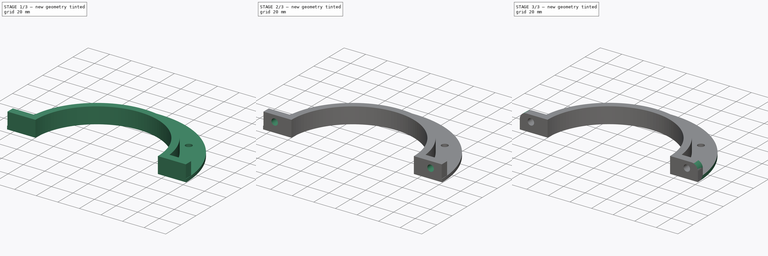
[diagram: build sequence overview — one tinted view per stage of 3, left to right]
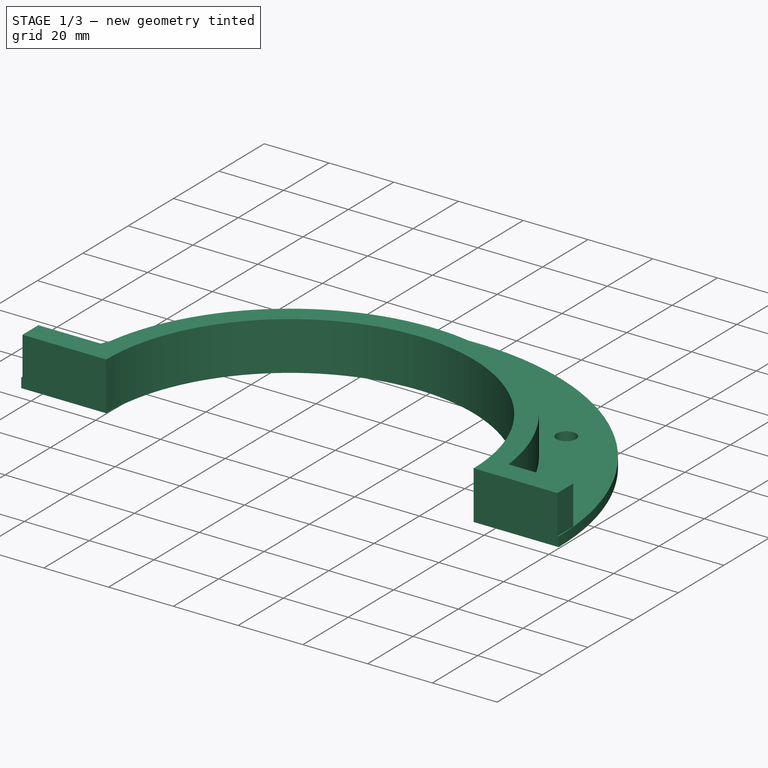
[diagram: stage 1 of 3 — iso view after this stage's code; geometry added in this stage tinted green]
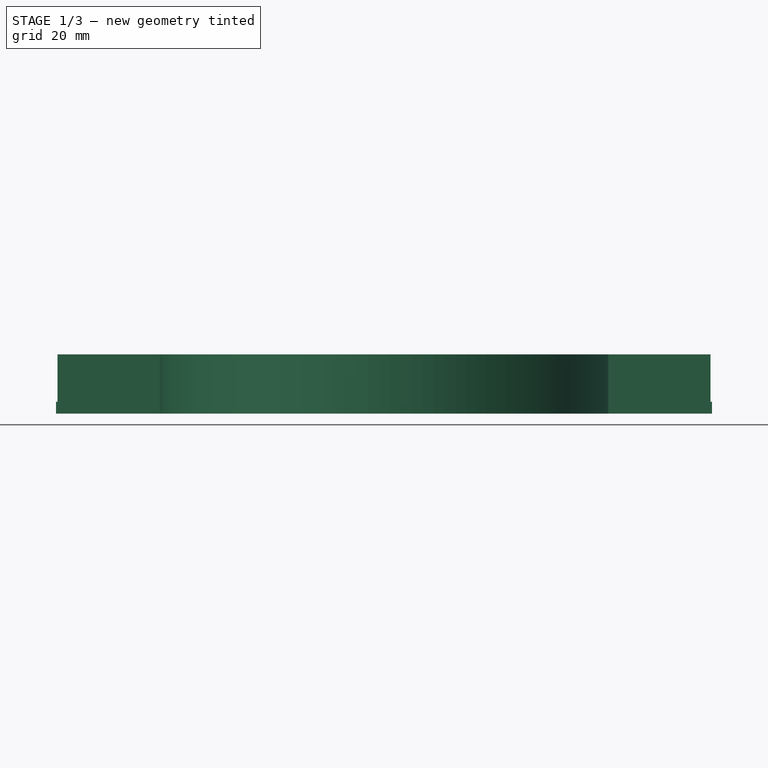
[diagram: stage 1 of 3 — front view after this stage's code; geometry added in this stage tinted green]
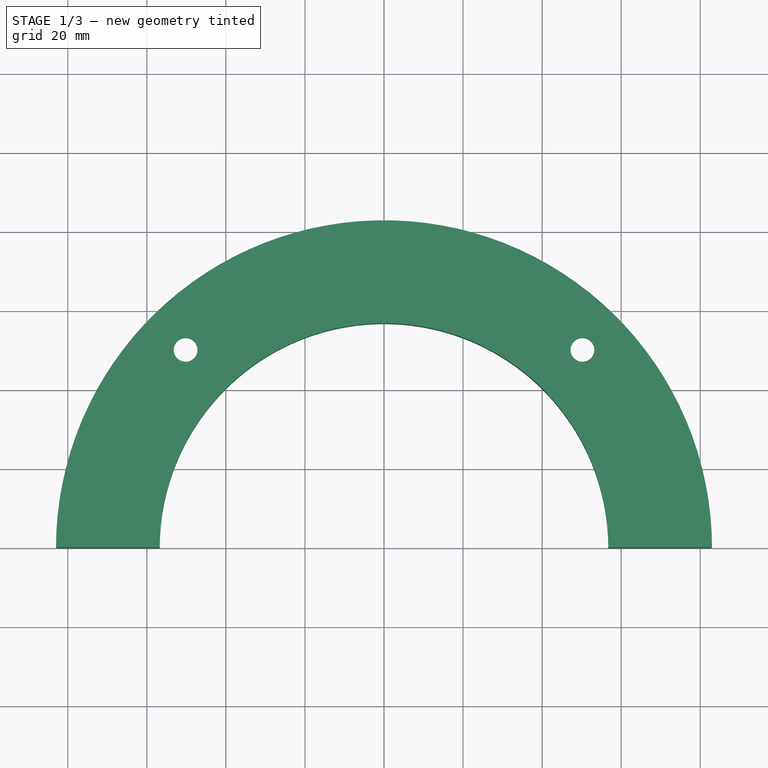
[diagram: stage 1 of 3 — top view after this stage's code; geometry added in this stage tinted green]
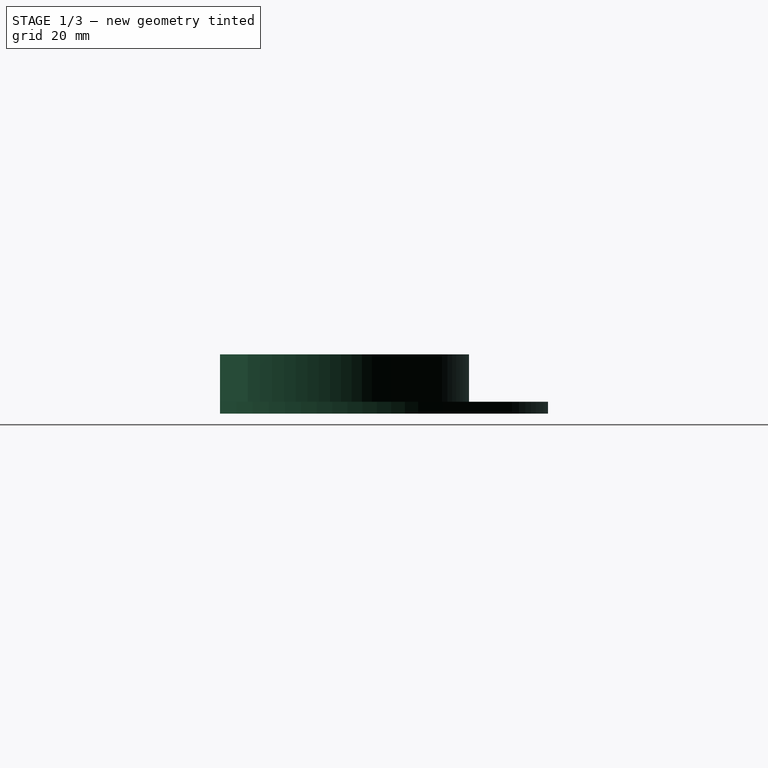
[diagram: stage 1 of 3 — right view after this stage's code; geometry added in this stage tinted green]
FCSTD DOCUMENT  (FreeCAD 1.0R39109 (Git))
Label: lock_pipe
License: All rights reserved
LicenseURL: https://en.wikipedia.org/wiki/All_rights_reserved
objects: Sketcher::SketchObject×4, PartDesign::Pad×2, PartDesign::Pocket×2, PartDesign::Fillet×1, PartDesign::Body×1
note: 24 computed .brp shape members not serialized (recipe doc carries the construction recipe); baked Part::Feature solids carry a one-line shape summary decoded from their .brp

FEATURE [Sketcher::SketchObject] Sketch
  ArcFitTolerance = 1e-06
  AttachmentSupport = -> [XY_Plane]
  FullyConstrained = true
  MakeInternals = false
  MapMode = 5
  sketch-geometry (8):
    g0: ArcOfCircle CenterX=0 CenterY=0 CenterZ=0 NormalX=0 NormalY=0 NormalZ=1 AngleXU=0 Radius=63 StartAngle=0.111341 EndAngle=3.03025
    g1: ArcOfCircle CenterX=0 CenterY=0 CenterZ=0 NormalX=0 NormalY=0 NormalZ=1 AngleXU=0 Radius=56.75 StartAngle=0 EndAngle=3.14159
    g2: LineSegment StartX=62.6099 StartY=7 StartZ=0 EndX=82.6099 EndY=7 EndZ=0
    g3: LineSegment StartX=82.6099 StartY=7 StartZ=0 EndX=82.6099 EndY=0 EndZ=0
    g4: LineSegment StartX=82.6099 StartY=0 StartZ=0 EndX=56.75 EndY=0 EndZ=0
    g5: LineSegment StartX=-56.75 StartY=6.9e-15 StartZ=0 EndX=-82.6099 EndY=0 EndZ=0
    g6: LineSegment StartX=-82.6099 StartY=0 StartZ=0 EndX=-82.6099 EndY=7 EndZ=0
    g7: LineSegment StartX=-82.6099 StartY=7 StartZ=0 EndX=-62.6099 EndY=7 EndZ=0
  constraints (24):
    c: Coincident(g1,g0)
    c: PointOnObject(g1,g-1)
    c: PointOnObject(g1,g-1)
    c: Radius(g1) = 56.75
    c: Radius(g0) = 63
    c: Coincident(g2,g0)
    c: Horizontal(g2)
    c: Coincident(g3,g2)
    c: PointOnObject(g3,g-1)
    c: Vertical(g3)
    c: Coincident(g4,g3)
    c: Coincident(g4,g1)
    c: Coincident(g5,g1)
    c: PointOnObject(g5,g-1)
    c: Coincident(g6,g5)
    c: Coincident(g7,g6)
    c: Coincident(g7,g0)
    c: Horizontal(g7)
    c: Vertical(g6)
    c: Equal(g7,g2)
    c: Equal(g3,g6)
    c: Coincident(g0,g-1)
    c: Distance(g6,g6) = 7
    c: DistanceX(g7,g7) = 20
FEATURE [PartDesign::Pad] Pad
  Direction = (0,0,1)
  Length = 15
  Length2 = 10
  Profile = -> Sketch
  ReferenceAxis = -> Sketch [N_Axis]
  Refine = true
  Suppressed = false
  Type = 0
FEATURE [Sketcher::SketchObject] Sketch001
  ArcFitTolerance = 1e-06
  AttachmentSupport = -> [Pad]
  FullyConstrained = true
  MakeInternals = false
  MapMode = 5
  Placement = pos=(0,0,0) rot=(1,0,0;3.14159rad)
  sketch-geometry (13):
    g0: ArcOfCircle CenterX=0 CenterY=0 CenterZ=0 NormalX=0 NormalY=0 NormalZ=1 AngleXU=0 Radius=83 StartAngle=3.14159 EndAngle=6.28319
    g1: ArcOfCircle CenterX=0 CenterY=0 CenterZ=0 NormalX=0 NormalY=0 NormalZ=1 AngleXU=0 Radius=63 StartAngle=3.14159 EndAngle=6.28319
    g2: LineSegment StartX=-63 StartY=7.7e-15 StartZ=0 EndX=-83 EndY=1.02e-14 EndZ=0
    g3: LineSegment StartX=63 StartY=-1.54e-14 StartZ=0 EndX=83 EndY=-2.03e-14 EndZ=0
    g4: Circle [constr] CenterX=0 CenterY=0 CenterZ=0 NormalX=0 NormalY=0 NormalZ=1 AngleXU=0 Radius=71
    g5: Circle CenterX=50.2046 CenterY=-50.2046 CenterZ=0 NormalX=0 NormalY=0 NormalZ=1 AngleXU=0 Radius=3
    g6: Circle CenterX=-50.2046 CenterY=-50.2046 CenterZ=0 NormalX=0 NormalY=0 NormalZ=1 AngleXU=0 Radius=3
    g7: Circle [constr] CenterX=-50.2046 CenterY=50.2046 CenterZ=0 NormalX=0 NormalY=0 NormalZ=1 AngleXU=0 Radius=3
    g8: Circle [constr] CenterX=50.2046 CenterY=50.2046 CenterZ=0 NormalX=0 NormalY=0 NormalZ=1 AngleXU=0 Radius=3
    g9: LineSegment [constr] StartX=50.2046 StartY=50.2046 StartZ=0 EndX=-7.1e-15 EndY=0 EndZ=0
    g10: LineSegment [constr] StartX=0 StartY=0 StartZ=0 EndX=50.2046 EndY=-50.2046 EndZ=0
    g11: LineSegment [constr] StartX=0 StartY=0 StartZ=0 EndX=-50.2046 EndY=-50.2046 EndZ=0
    g12: LineSegment [constr] StartX=0 StartY=0 StartZ=0 EndX=-50.2046 EndY=50.2046 EndZ=0
  constraints (34):
    c: Coincident(g0,g-1)
    c: PointOnObject(g0,g-1)
    c: PointOnObject(g0,g-1)
    c: Coincident(g1,g0)
    c: PointOnObject(g1,g-1)
    c: PointOnObject(g1,g-1)
    c: Coincident(g2,g1)
    c: Coincident(g2,g0)
    c: Coincident(g3,g1)
    c: Coincident(g3,g0)
    c: Radius(g1) = 63
    c: Radius(g0) = 83
    c: Coincident(g4,g0)
    c: Diameter(g4) = 142
    c: PointOnObject(g6,g4)
    c: PointOnObject(g7,g4)
    c: PointOnObject(g8,g4)
    c: Coincident(g9,g8)
    c: Coincident(g9,g0)
    c: Coincident(g10,g0)
    c: Coincident(g10,g5)
    c: Coincident(g11,g0)
    c: Coincident(g11,g6)
    c: Coincident(g12,g0)
    c: Coincident(g12,g7)
    c: Angle(g12,g11) = 1.5708
    c: Angle(g11,g10) = 1.5708
    c: Angle(g10,g9) = 1.5708
    c: Equal(g6,g5)
    c: Equal(g5,g8)
    c: Equal(g8,g7)
    c: Diameter(g5) = 6
    c: Angle(g-1,g11) = 0.785398
    c: PointOnObject(g5,g4)
FEATURE [PartDesign::Pad] Pad001
  BaseFeature = -> Pad
  Direction = (0,0,-1)
  Length = 3
  Length2 = 10
  Profile = -> Sketch001
  ReferenceAxis = -> Sketch001 [N_Axis]
  Refine = true
  Reversed = true
  Suppressed = false
  Type = 0
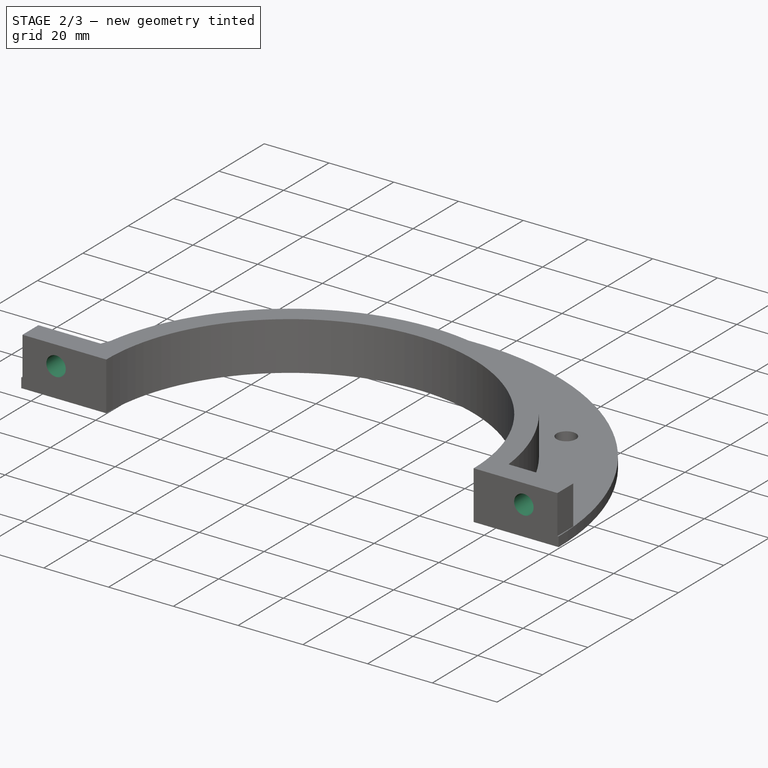
[diagram: stage 2 of 3 — iso view after this stage's code; geometry added in this stage tinted green]
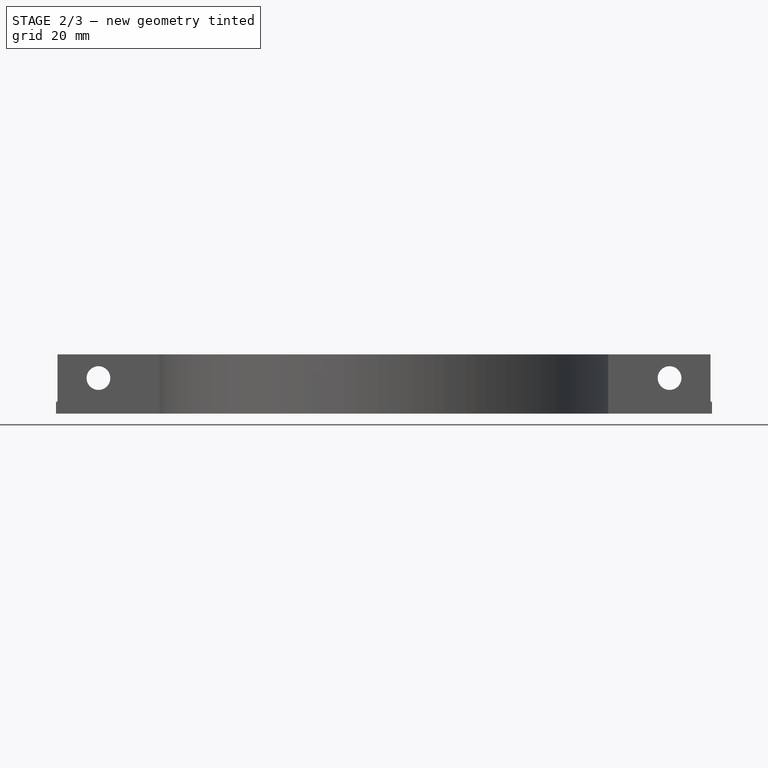
[diagram: stage 2 of 3 — front view after this stage's code; geometry added in this stage tinted green]
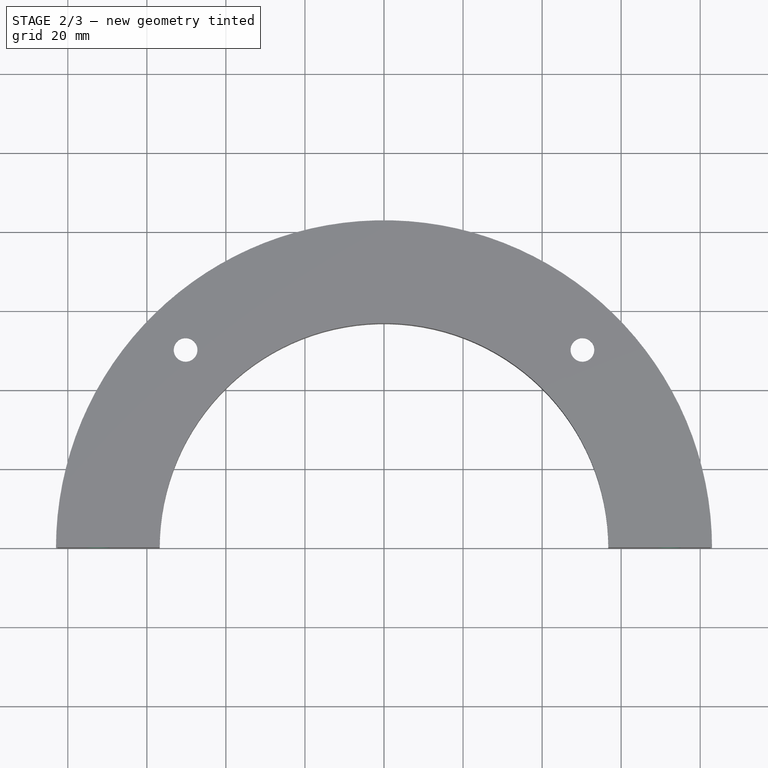
[diagram: stage 2 of 3 — top view after this stage's code; geometry added in this stage tinted green]
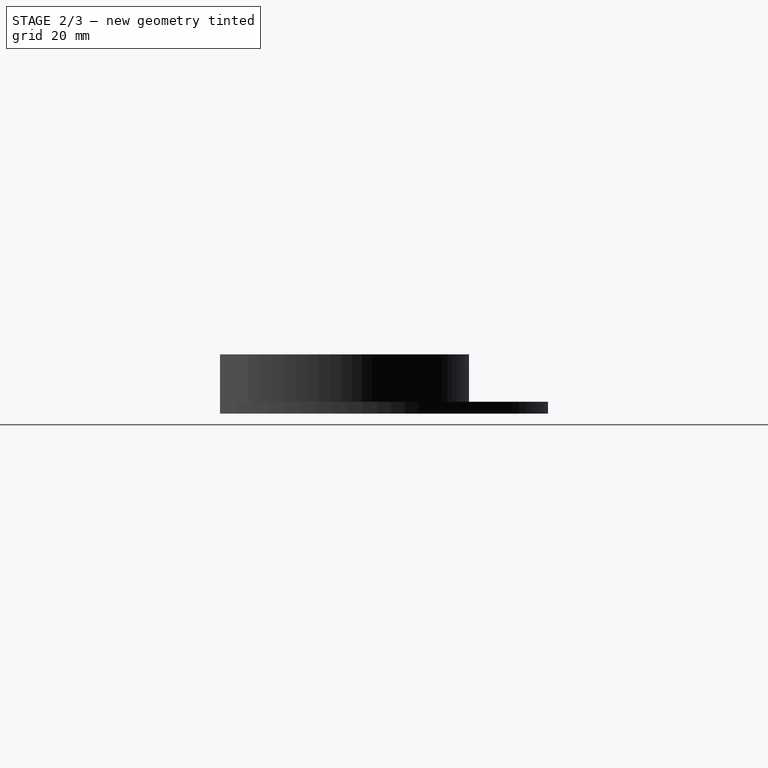
[diagram: stage 2 of 3 — right view after this stage's code; geometry added in this stage tinted green]
FEATURE [Sketcher::SketchObject] Sketch002
  ArcFitTolerance = 1e-06
  AttachmentSupport = -> [Pad001]
  FullyConstrained = true
  MakeInternals = false
  MapMode = 5
  Placement = pos=(0,7,0) rot=(0,0.707107,0.707107;3.14159rad)
  sketch-geometry (3):
    g0: Circle CenterX=-72.2513 CenterY=9 CenterZ=0 NormalX=0 NormalY=0 NormalZ=1 AngleXU=0 Radius=3
    g1: Circle CenterX=72.2513 CenterY=9 CenterZ=0 NormalX=0 NormalY=0 NormalZ=1 AngleXU=0 Radius=3
    g2: Circle [constr] CenterX=0 CenterY=3 CenterZ=0 NormalX=0 NormalY=0 NormalZ=1 AngleXU=0 Radius=72.5
  constraints (9):
    c: Diameter(g2) = 145
    c: PointOnObject(g1,g2)
    c: PointOnObject(g0,g2)
    c: DistanceY(g-1,g2) = 3
    c: Vertical(g2,g-1)
    c: Horizontal(g0,g1)
    c: Diameter(g0) = 6
    c: DistanceY(g2,g0) = 6
    c: Equal(g1,g0)
FEATURE [PartDesign::Pocket] Pocket
  BaseFeature = -> Pad001
  Direction = (0,-1,2e-16)
  Length = 7
  Length2 = 5
  Profile = -> Sketch002
  ReferenceAxis = -> Sketch002 [N_Axis]
  Refine = true
  Suppressed = false
  Type = 1
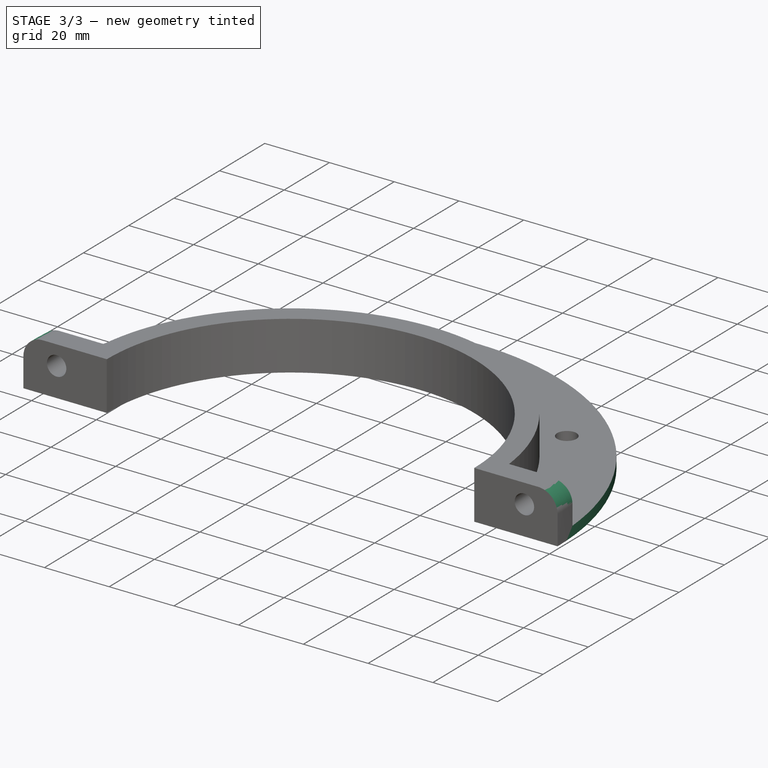
[diagram: stage 3 of 3 — iso view after this stage's code; geometry added in this stage tinted green]
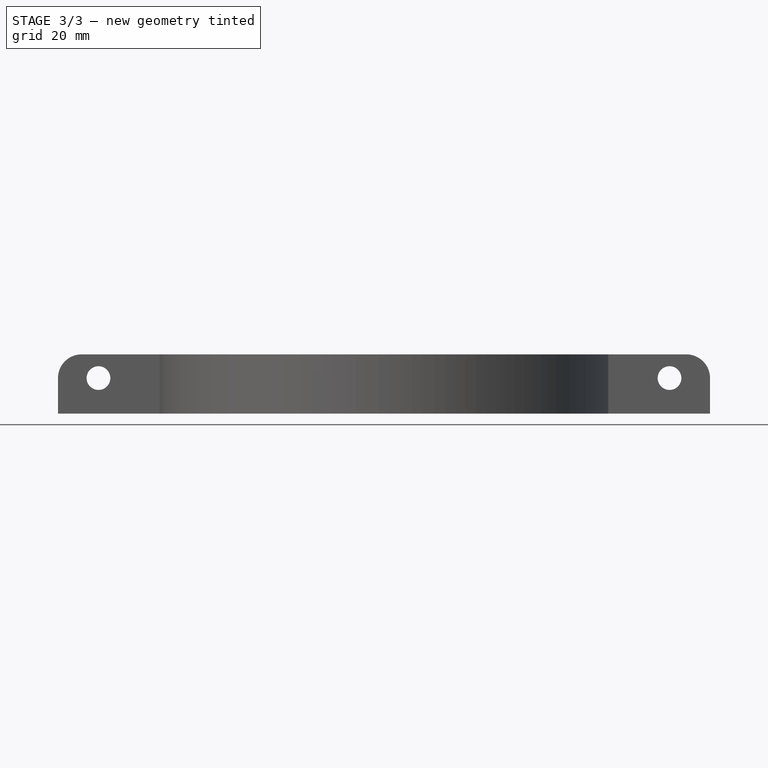
[diagram: stage 3 of 3 — front view after this stage's code; geometry added in this stage tinted green]
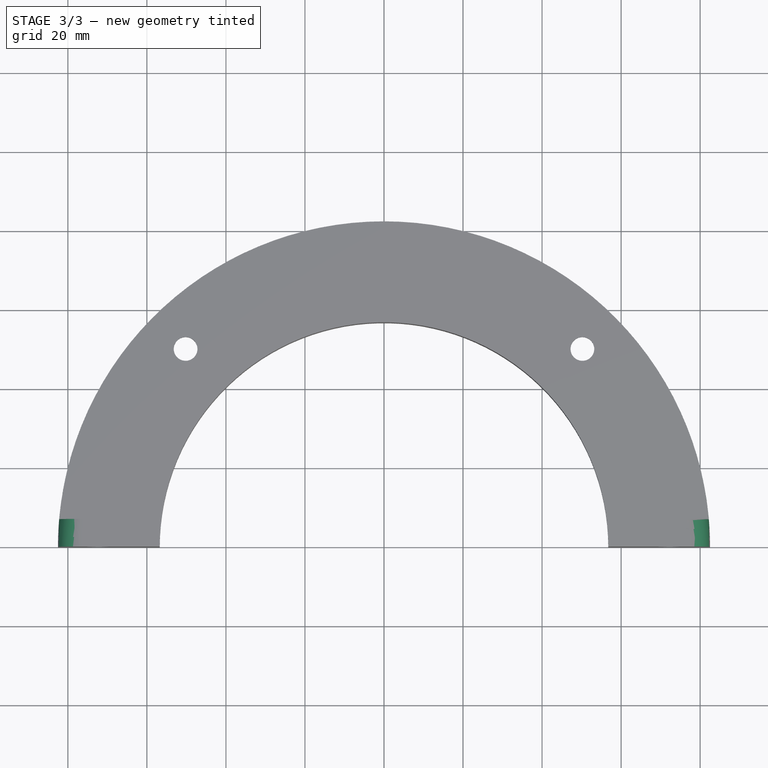
[diagram: stage 3 of 3 — top view after this stage's code; geometry added in this stage tinted green]
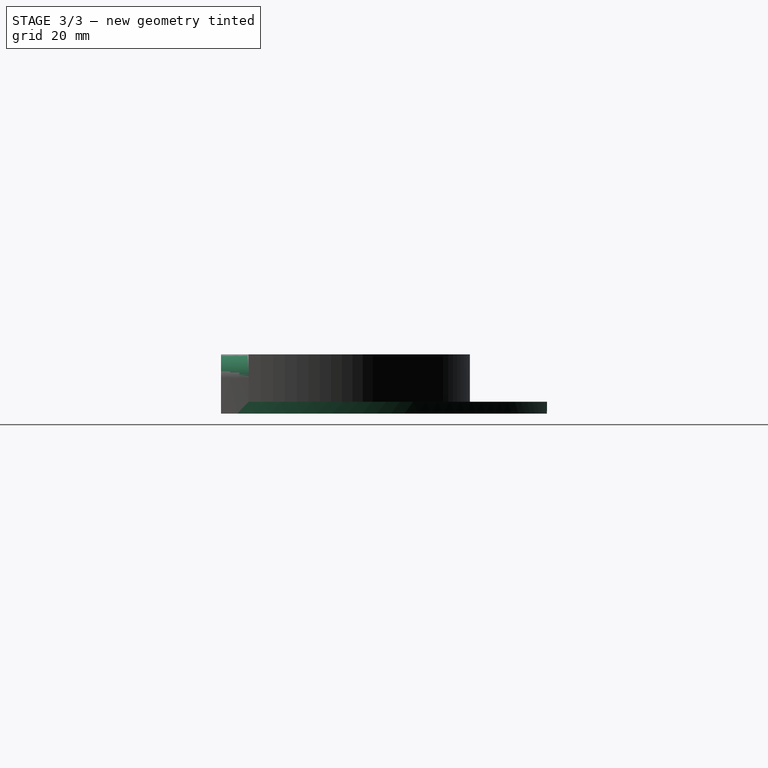
[diagram: stage 3 of 3 — right view after this stage's code; geometry added in this stage tinted green]
FEATURE [Sketcher::SketchObject] Sketch003
  ArcFitTolerance = 1e-06
  AttachmentSupport = -> [Pocket]
  FullyConstrained = true
  MakeInternals = false
  MapMode = 5
  Placement = pos=(0,0,3) rot=(0,0,1;0rad)
  sketch-geometry (2):
    g0: Circle CenterX=0 CenterY=0 CenterZ=0 NormalX=0 NormalY=0 NormalZ=1 AngleXU=0 Radius=82.5
    g1: Circle CenterX=0 CenterY=0 CenterZ=0 NormalX=0 NormalY=0 NormalZ=1 AngleXU=0 Radius=100
  constraints (4):
    c: Coincident(g0,g-1)
    c: Diameter(g0) = 165
    c: Coincident(g1,g0)
    c: Diameter(g1) = 200
FEATURE [PartDesign::Pocket] Pocket001
  BaseFeature = -> Pocket
  Direction = (0,0,-1)
  Length = 5
  Length2 = 19
  Profile = -> Sketch003
  ReferenceAxis = -> Sketch003 [N_Axis]
  Refine = true
  Suppressed = false
  Type = 4
FEATURE [PartDesign::Fillet] Fillet
  Base = -> Pocket001 [Edge11,Edge15]
  BaseFeature = -> Pocket001
  Radius = 6
  Refine = true
  SupportTransform = false
  Suppressed = false
  UseAllEdges = false
FEATURE [PartDesign::Body] Body
  AllowCompound = false
  Group = -> [Sketch,Pad,Sketch001,Pad001,Sketch002,Pocket,Sketch003,Pocket001,Fillet]
  Origin = -> Origin
  Tip = -> Fillet
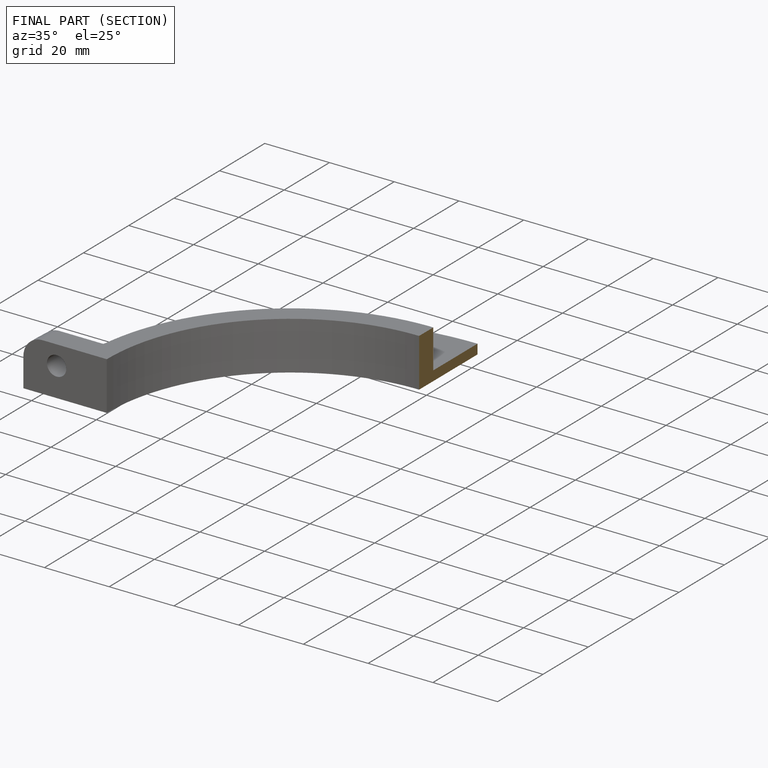
[diagram: finished part — half-section view (interior)]
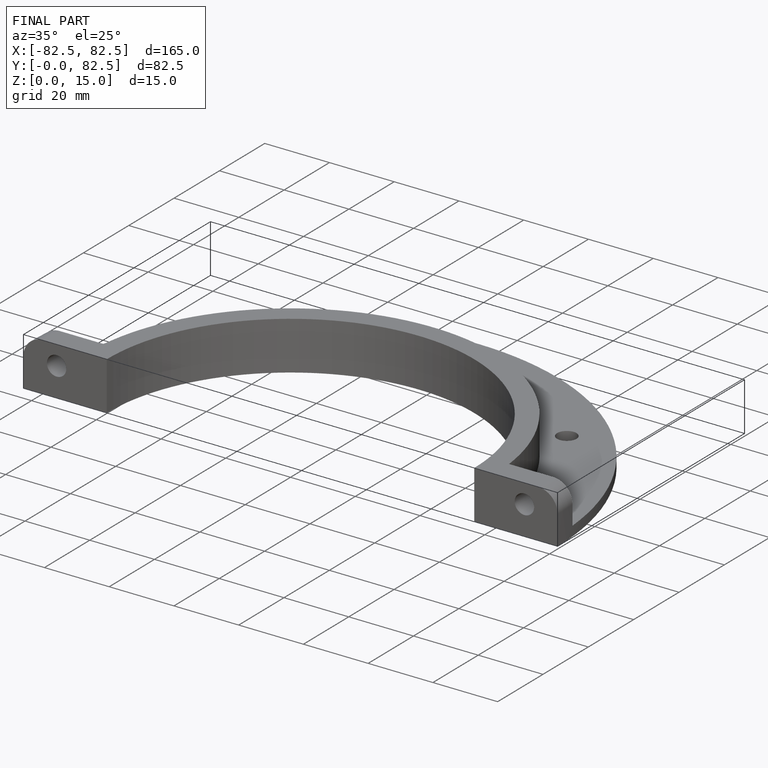
[diagram: finished part — iso view with bounding-box wireframe]
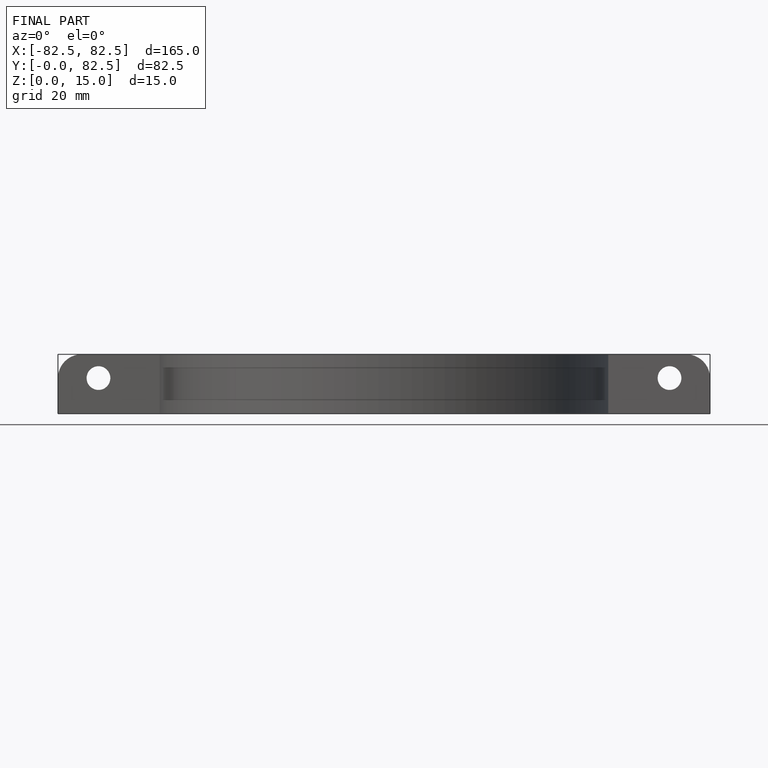
[diagram: finished part — front view with bounding-box wireframe]
